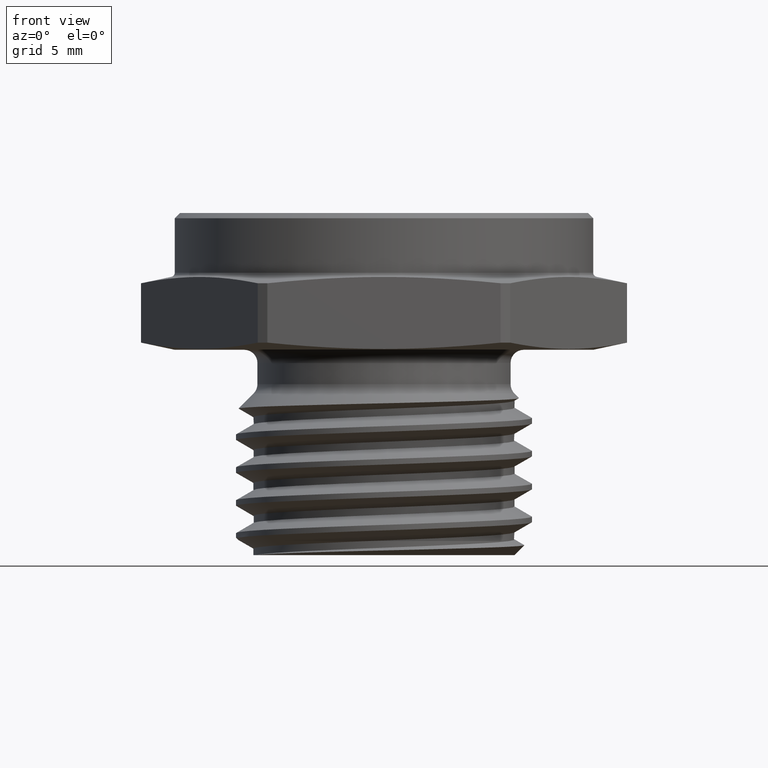
[diagram: clean part render]
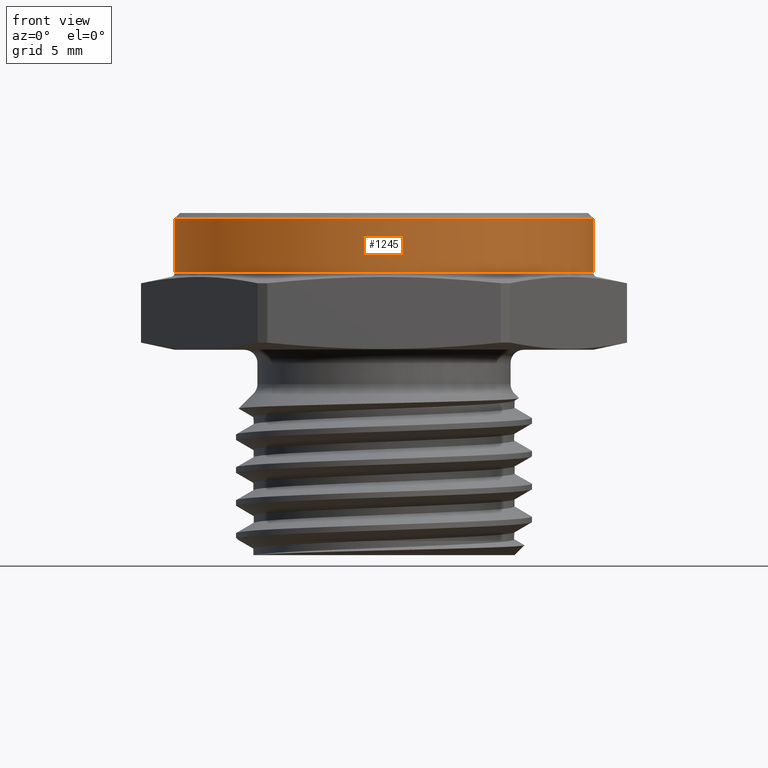
[diagram: same view with one face highlighted and labeled with its STEP entity id]
A machine part, front view. The second image highlights one B-rep face of the part: STEP entity #1245.
In plain terms, the highlighted cylindrical surface (partial cylindrical patch) has radius 10.0965 mm, axis along (-0, -0, -1).
Its self-contained STEP definition (entity closure, byte-faithful):
#59 = CIRCLE ( 'NONE', #228, 0.3974999999999999100 ) ;
#88 = CIRCLE ( 'NONE', #246, 0.3974999999999999100 ) ;
#228 = AXIS2_PLACEMENT_3D ( 'NONE', #1833, #1834, #1835 ) ;
#246 = AXIS2_PLACEMENT_3D ( 'NONE', #2244, #2245, #2246 ) ;
#305 = AXIS2_PLACEMENT_3D ( 'NONE', #878, #874, #875 ) ;
#351 = ORIENTED_EDGE ( 'NONE', *, *, #736, .F. ) ;
#352 = ORIENTED_EDGE ( 'NONE', *, *, #670, .T. ) ;
#353 = ORIENTED_EDGE ( 'NONE', *, *, #734, .T. ) ;
#354 = ORIENTED_EDGE ( 'NONE', *, *, #702, .T. ) ;
#365 = VERTEX_POINT ( 'NONE', #1488 ) ;
#379 = VERTEX_POINT ( 'NONE', #1498 ) ;
#428 = VERTEX_POINT ( 'NONE', #1503 ) ;
#458 = VERTEX_POINT ( 'NONE', #1545 ) ;
#473 = LINE ( 'NONE', #2387, #480 ) ;
#475 = LINE ( 'NONE', #2377, #477 ) ;
#477 = VECTOR ( 'NONE', #2378, 39.37007874015748100 ) ;
#480 = VECTOR ( 'NONE', #2382, 39.37007874015748100 ) ;
#583 = FACE_OUTER_BOUND ( 'NONE', #1332, .T. ) ;
#586 = CYLINDRICAL_SURFACE ( 'NONE', #305, 0.3974999999999999100 ) ;
#670 = EDGE_CURVE ( 'NONE', #458, #379, #59, .T. ) ;
#702 = EDGE_CURVE ( 'NONE', #365, #428, #88, .T. ) ;
#734 = EDGE_CURVE ( 'NONE', #379, #365, #475, .T. ) ;
#736 = EDGE_CURVE ( 'NONE', #458, #428, #473, .T. ) ;
#874 = DIRECTION ( 'NONE',  ( -0.0000000000000000000, -0.0000000000000000000, -1.000000000000000000 ) ) ;
#875 = DIRECTION ( 'NONE',  ( -1.000000000000000000, 0.0000000000000000000, 0.0000000000000000000 ) ) ;
#878 = CARTESIAN_POINT ( 'NONE',  ( 0.0000000000000000000, 0.0000000000000000000, 0.2600000000000000100 ) ) ;
#1245 = ADVANCED_FACE ( 'NONE', ( #583 ), #586, .T. ) ;
#1332 = EDGE_LOOP ( 'NONE', ( #351, #352, #353, #354 ) ) ;
#1488 = CARTESIAN_POINT ( 'NONE',  ( -0.3974999999999999100, 0.0000000000000000000, 0.1464782722655600900 ) ) ;
#1498 = CARTESIAN_POINT ( 'NONE',  ( -0.3974999999999999100, 0.0000000000000000000, 0.2500000000000009400 ) ) ;
#1503 = CARTESIAN_POINT ( 'NONE',  ( 0.3974999999999999100, 4.867971026610726800E-017, 0.1464782722655600700 ) ) ;
#1545 = CARTESIAN_POINT ( 'NONE',  ( 0.3974999999999999100, 4.867971026610726800E-017, 0.2500000000000009400 ) ) ;
#1833 = CARTESIAN_POINT ( 'NONE',  ( 0.0000000000000000000, 0.0000000000000000000, 0.2500000000000009400 ) ) ;
#1834 = DIRECTION ( 'NONE',  ( 0.0000000000000000000, 0.0000000000000000000, -1.000000000000000000 ) ) ;
#1835 = DIRECTION ( 'NONE',  ( 1.000000000000000000, 0.0000000000000000000, 0.0000000000000000000 ) ) ;
#2244 = CARTESIAN_POINT ( 'NONE',  ( 0.0000000000000000000, 0.0000000000000000000, 0.1464782722655600700 ) ) ;
#2245 = DIRECTION ( 'NONE',  ( 6.123233995736748800E-017, 0.0000000000000000000, 1.000000000000000000 ) ) ;
#2246 = DIRECTION ( 'NONE',  ( 1.000000000000000000, 0.0000000000000000000, -4.295358480604188400E-017 ) ) ;
#2377 = CARTESIAN_POINT ( 'NONE',  ( -0.3974999999999999100, 0.0000000000000000000, 0.2600000000000000100 ) ) ;
#2378 = DIRECTION ( 'NONE',  ( -0.0000000000000000000, -0.0000000000000000000, -1.000000000000000000 ) ) ;
#2382 = DIRECTION ( 'NONE',  ( -0.0000000000000000000, -0.0000000000000000000, -1.000000000000000000 ) ) ;
#2387 = CARTESIAN_POINT ( 'NONE',  ( 0.3974999999999999100, 4.867971026610726800E-017, 0.2600000000000000100 ) ) ;